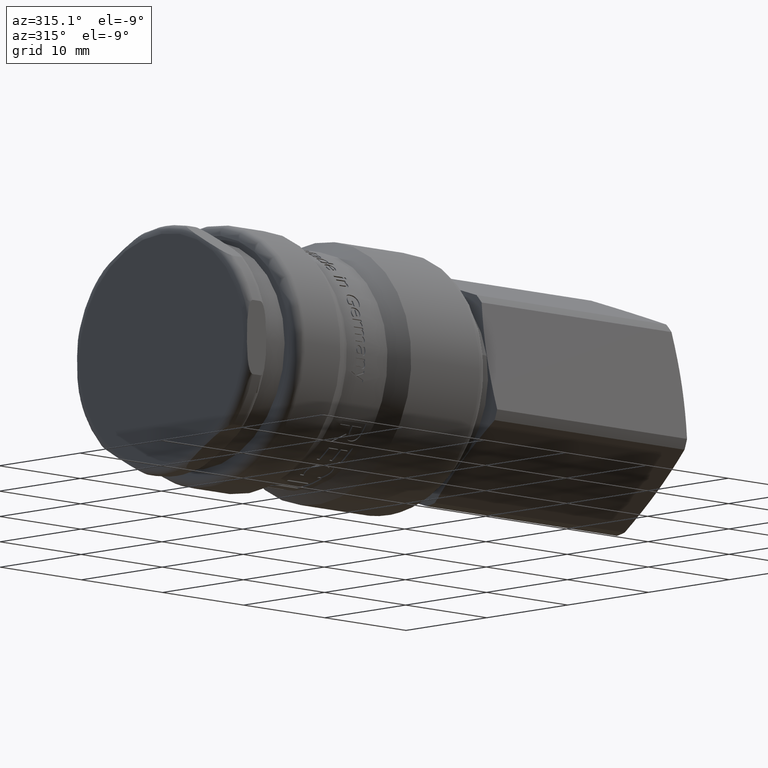
[diagram: clean part render]
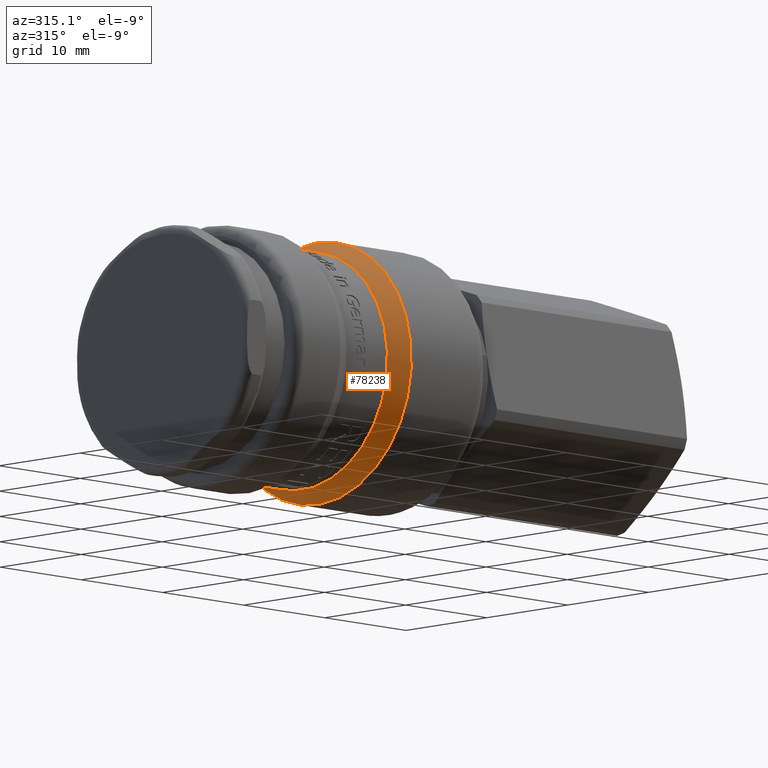
[diagram: same view with one face highlighted and labeled with its STEP entity id]
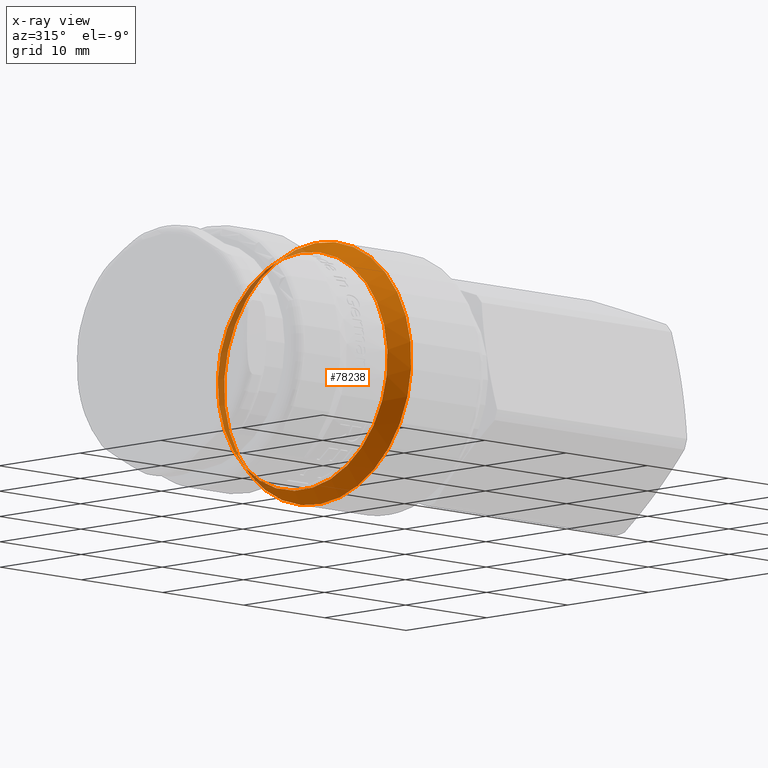
[diagram: x-ray of the same camera — body ghosted, the highlighted face saturated]
A machine part, auxiliary view. The second image highlights one B-rep face of the part: STEP entity #78238.
The next image is the same camera in x-ray: the body ghosted, the highlighted face saturated — about 14% of this face is hidden behind the body in this view.
In plain terms, the highlighted conical surface has half-angle 30 deg.
Its self-contained STEP definition (entity closure, byte-faithful):
#77373=CARTESIAN_POINT('',(17.390000000000001,4.537156381332045,9.46911885928875));
#77374=VERTEX_POINT('',#77373);
#77375=CARTESIAN_POINT('',(17.389999999999997,2.434738E-015,-6.632677E-015));
#77376=DIRECTION('',(1.0,-1.224870E-016,-2.556323E-016));
#77377=DIRECTION('',(2.834624E-016,0.432110131555432,0.901820843741786));
#77378=AXIS2_PLACEMENT_3D('',#77375,#77376,#77377);
#77379=CIRCLE('',#77378,10.500000000000004);
#77380=EDGE_CURVE('',#77374,#77374,#77379,.T.);
#78219=CARTESIAN_POINT('',(18.320977309068269,2.565082E-015,-6.987758E-015));
#78220=DIRECTION('',(1.0,1.400079E-016,-3.814075E-016));
#78221=DIRECTION('',(2.834624E-016,0.432110131555432,0.901820843741786));
#78222=AXIS2_PLACEMENT_3D('',#78219,#78220,#78221);
#78223=CONICAL_SURFACE('',#78222,11.037500000000003,29.999999999999901);
#78224=CARTESIAN_POINT('',(19.251954618136544,5.001674772754134,10.438576266311168));
#78225=VERTEX_POINT('',#78224);
#78226=CARTESIAN_POINT('',(19.251954618136541,2.695426E-015,-7.342840E-015));
#78227=DIRECTION('',(1.0,-1.224870E-016,-2.556323E-016));
#78228=DIRECTION('',(2.834624E-016,0.432110131555432,0.901820843741786));
#78229=AXIS2_PLACEMENT_3D('',#78226,#78227,#78228);
#78230=CIRCLE('',#78229,11.575000000000001);
#78231=EDGE_CURVE('',#78225,#78225,#78230,.T.);
#78232=ORIENTED_EDGE('',*,*,#78231,.F.);
#78233=EDGE_LOOP('',(#78232));
#78234=FACE_OUTER_BOUND('',#78233,.T.);
#78235=ORIENTED_EDGE('',*,*,#77380,.T.);
#78236=EDGE_LOOP('',(#78235));
#78237=FACE_BOUND('',#78236,.T.);
#78238=ADVANCED_FACE('',(#78234,#78237),#78223,.T.);